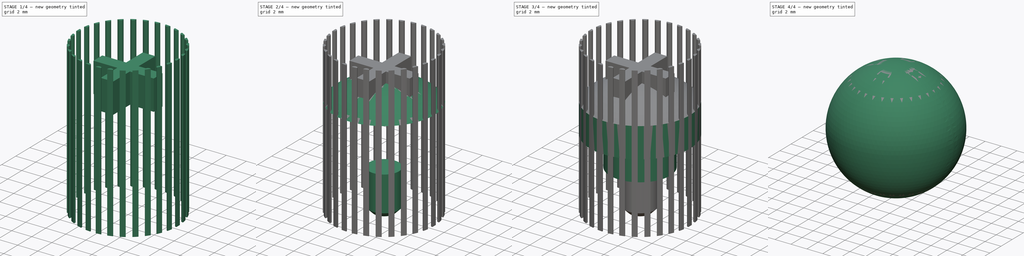
[diagram: build sequence overview — one tinted view per stage of 4, left to right]
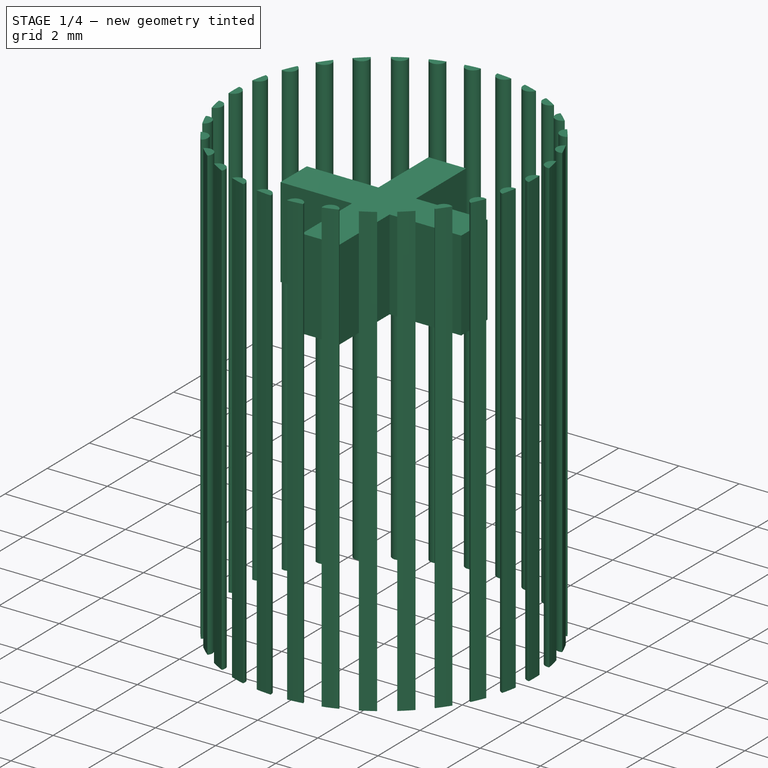
[diagram: stage 1 of 4 — iso view after this stage's code; geometry added in this stage tinted green]
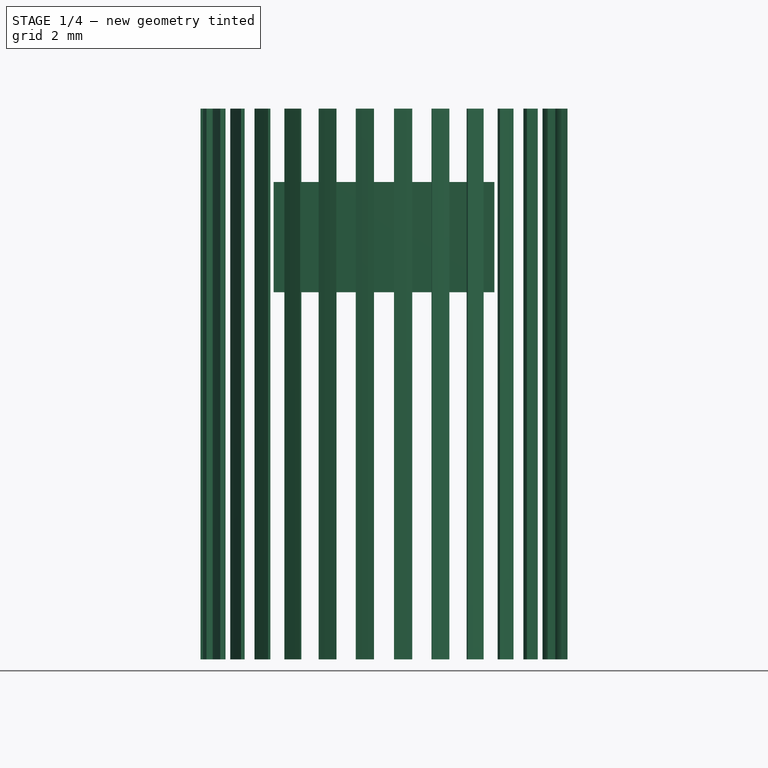
[diagram: stage 1 of 4 — front view after this stage's code; geometry added in this stage tinted green]
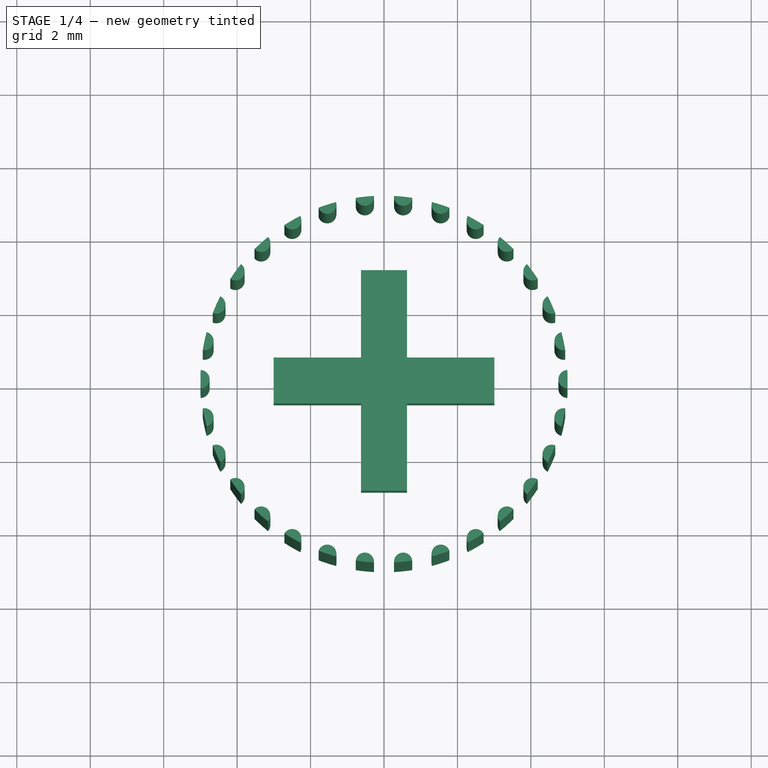
[diagram: stage 1 of 4 — top view after this stage's code; geometry added in this stage tinted green]
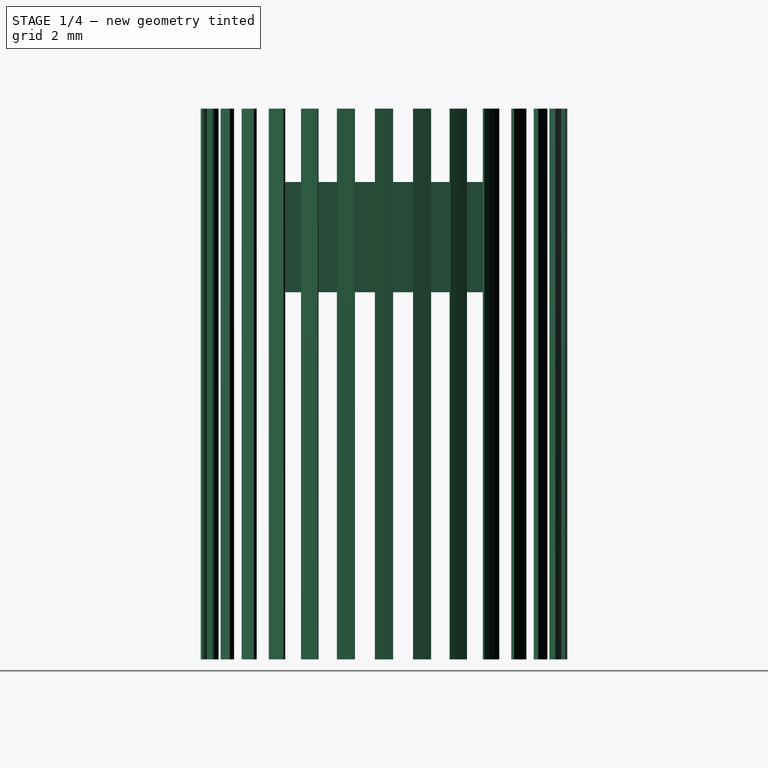
[diagram: stage 1 of 4 — right view after this stage's code; geometry added in this stage tinted green]
FCSTD DOCUMENT  (FreeCAD 0.14R3310 (Git))
Label: 51. TORNILLO M3 TAPA SUPERIOR
License: CC-BY 3.0
LicenseURL: http://creativecommons.org/licenses/by/3.0/
objects: Sketcher::SketchObject×6, PartDesign::Pad×5, Part::Cut×2, PartDesign::Chamfer×1, Part::Sphere×1, PartDesign::Revolution×1, Part::MultiFuse×1, Part::FeaturePython×1
note: 24 computed .brp shape members not serialized (recipe doc carries the construction recipe); baked Part::Feature solids carry a one-line shape summary decoded from their .brp

FEATURE [Sketcher::SketchObject] Sketch004
  Placement = pos=(0,0,10) rot=(0,0,1;0rad)
  sketch-geometry (12):
    g0: LineSegment StartX=-0.625 StartY=3.005 StartZ=0 EndX=0.625 EndY=3.005 EndZ=0
    g1: LineSegment StartX=0.625 StartY=3.005 StartZ=0 EndX=0.625 EndY=0.625 EndZ=0
    g2: LineSegment StartX=0.625 StartY=0.625 StartZ=0 EndX=3.005 EndY=0.625 EndZ=0
    g3: LineSegment StartX=3.005 StartY=0.625 StartZ=0 EndX=3.005 EndY=-0.625 EndZ=0
    g4: LineSegment StartX=3.005 StartY=-0.625 StartZ=0 EndX=0.625 EndY=-0.625 EndZ=0
    g5: LineSegment StartX=0.625 StartY=-0.625 StartZ=0 EndX=0.625 EndY=-3.005 EndZ=0
    g6: LineSegment StartX=0.625 StartY=-3.005 StartZ=0 EndX=-0.625 EndY=-3.005 EndZ=0
    g7: LineSegment StartX=-0.625 StartY=-3.005 StartZ=0 EndX=-0.625 EndY=-0.625 EndZ=0
    g8: LineSegment StartX=-0.625 StartY=-0.625 StartZ=0 EndX=-3.005 EndY=-0.625 EndZ=0
    g9: LineSegment StartX=-3.005 StartY=-0.625 StartZ=0 EndX=-3.005 EndY=0.625 EndZ=0
    g10: LineSegment StartX=-3.005 StartY=0.625 StartZ=0 EndX=-0.625 EndY=0.625 EndZ=0
    g11: LineSegment StartX=-0.625 StartY=0.625 StartZ=0 EndX=-0.625 EndY=3.005 EndZ=0
  constraints (38):
    c: Horizontal(g0)
    c: Coincident(g0,g1)
    c: Coincident(g1,g2)
    c: Horizontal(g2)
    c: Coincident(g2,g3)
    c: Vertical(g3)
    c: Coincident(g3,g4)
    c: Horizontal(g4)
    c: Coincident(g4,g5)
    c: Vertical(g5)
    c: Coincident(g5,g6)
    c: Horizontal(g6)
    c: Coincident(g6,g7)
    c: Vertical(g7)
    c: Coincident(g7,g8)
    c: Horizontal(g8)
    c: Coincident(g8,g9)
    c: Vertical(g9)
    c: Coincident(g9,g10)
    c: Horizontal(g10)
    c: Coincident(g10,g11)
    c: Coincident(g11,g0)
    c: Vertical(g11)
    c: Vertical(g1)
    c: Equal(g4,g2)
    c: Equal(g2,g1)
    c: Equal(g1,g11)
    c: Equal(g11,g10)
    c: Equal(g10,g8)
    c: Equal(g8,g7)
    c: Equal(g7,g5)
    c: Equal(g3,g0)
    c: Equal(g0,g9)
    c: Equal(g9,g6)
    c: Distance(g6) = 1.25
    c: Symmetric(g3,g8,g-2)
    c: Symmetric(g0,g5,g-1)
    c: Distance(g10) = 2.38
FEATURE [PartDesign::Pad] Pad003
  Length = 3
  Length2 = 100
  Placement = pos=(0,0,10) rot=(0,0,1;0rad)
  Sketch = -> Sketch004
  Type = 0
FEATURE [Sketcher::SketchObject] Sketch005
  sketch-geometry (3):
    g0: ArcOfCircle CenterX=5 CenterY=0 CenterZ=0 NormalX=0 NormalY=0 NormalZ=1 Radius=0.25 StartAngle=1.5958 EndAngle=4.68739
    g1: Circle [constr] CenterX=0 CenterY=0 CenterZ=0 NormalX=0 NormalY=0 NormalZ=1 Radius=5
    g2: ArcOfCircle CenterX=0 CenterY=0 CenterZ=0 NormalX=0 NormalY=0 NormalZ=1 Radius=5 StartAngle=6.23318 EndAngle=6.33319
  constraints (10):
    c: PointOnObject(g0,g-1)
    c: Coincident(g1,g-1)
    c: Radius(g1) = 5
    c: PointOnObject(g0,g1)
    c: PointOnObject(g0,g1)
    c: Radius(g0) = 0.25
    c: PointOnObject(g0,g1)
    c: Coincident(g2,g-1)
    c: Coincident(g2,g0)
    c: Coincident(g2,g0)
FEATURE [PartDesign::Pad] Pad004
  Length = 15
  Length2 = 100
  Sketch = -> Sketch005
  Type = 0
FEATURE [Part::FeaturePython] Array  # Draft array (typed FeaturePython)
  Angle = 360
  ArrayType = 1
  Axis = (0,0,1)
  Base = -> Pad004
  Center = (0,0,0)
  IntervalX = (1,0,0)
  IntervalY = (0,1,0)
  IntervalZ = (0,0,1)
  NumberPolar = 30
  NumberX = 2
  NumberY = 2
  NumberZ = 1
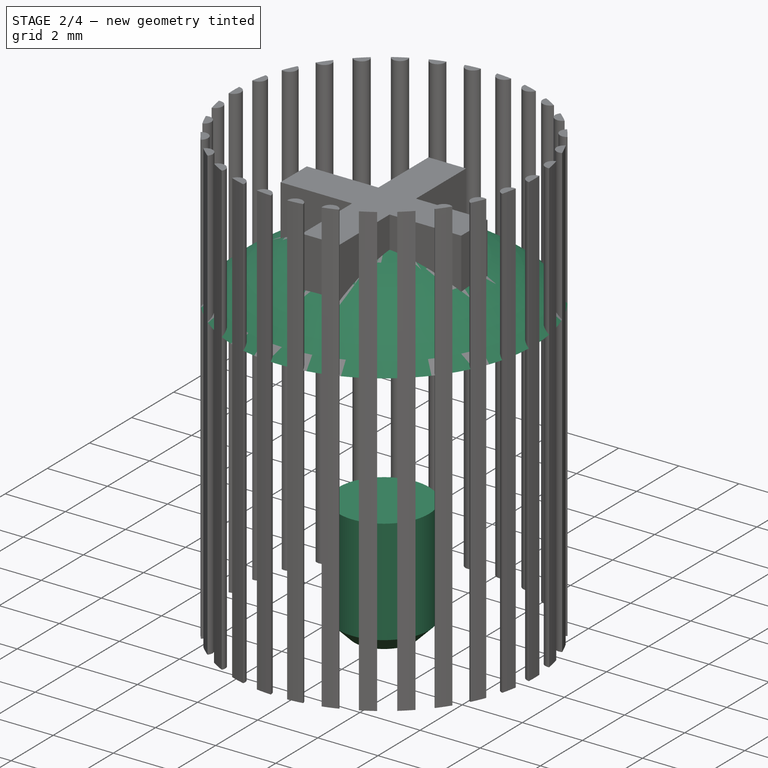
[diagram: stage 2 of 4 — iso view after this stage's code; geometry added in this stage tinted green]
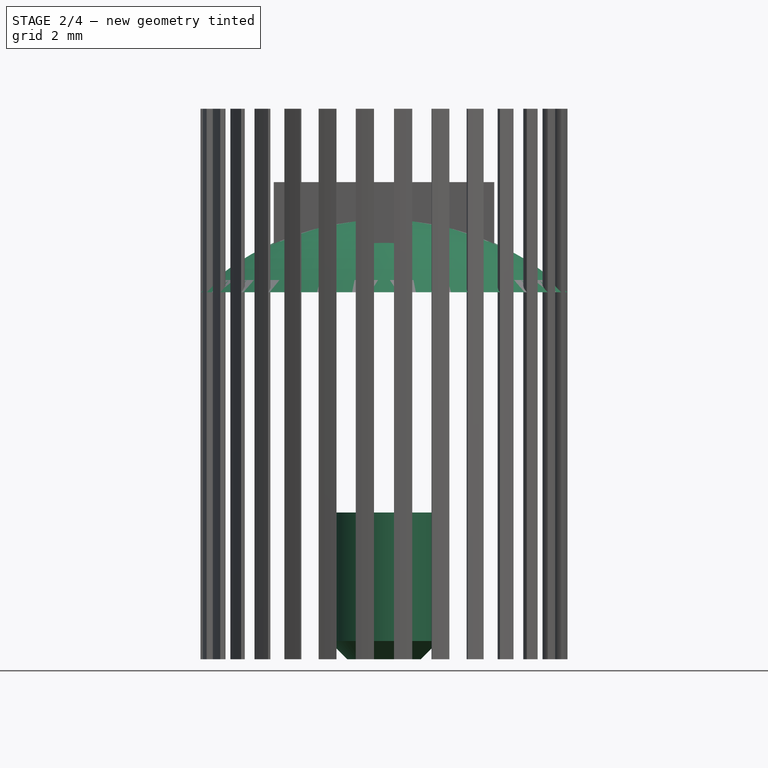
[diagram: stage 2 of 4 — front view after this stage's code; geometry added in this stage tinted green]
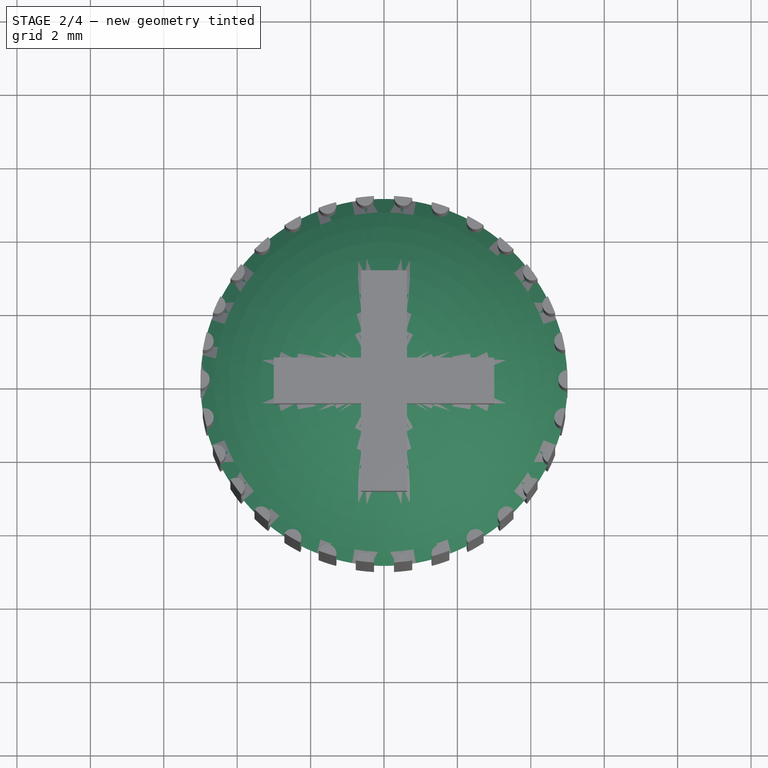
[diagram: stage 2 of 4 — top view after this stage's code; geometry added in this stage tinted green]
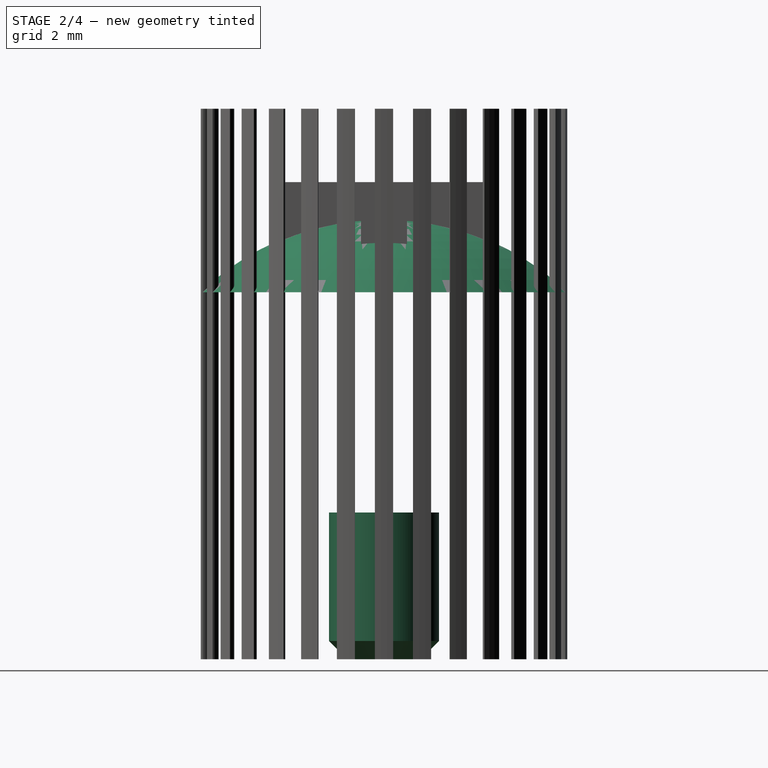
[diagram: stage 2 of 4 — right view after this stage's code; geometry added in this stage tinted green]
FEATURE [Sketcher::SketchObject] Sketch
  sketch-geometry (1):
    g0: Circle CenterX=0 CenterY=0 CenterZ=0 NormalX=0 NormalY=0 NormalZ=1 Radius=1.5
  constraints (2):
    c: Coincident(g0,g-1)
    c: Radius(g0) = 1.5
FEATURE [PartDesign::Pad] Pad
  Length = 4
  Length2 = 100
  Sketch = -> Sketch
  Type = 0
FEATURE [PartDesign::Chamfer] Chamfer
  Base = -> Pad [Edge2]
  Size = 0.5
FEATURE [Sketcher::SketchObject] Sketch003
  Placement = pos=(0,0,0) rot=(-1,0,0;4.71239rad)
  sketch-geometry (4):
    g0: LineSegment StartX=0 StartY=12 StartZ=0 EndX=0 EndY=10 EndZ=0
    g1: ArcOfCircle [constr] CenterX=0 CenterY=4.75 CenterZ=0 NormalX=0 NormalY=0 NormalZ=1 Radius=7.25 StartAngle=0.809784 EndAngle=2.33181
    g2: LineSegment StartX=-5 StartY=10 StartZ=0 EndX=0 EndY=10 EndZ=0
    g3: ArcOfCircle CenterX=0 CenterY=4.75 CenterZ=0 NormalX=0 NormalY=0 NormalZ=1 Radius=7.25 StartAngle=1.5708 EndAngle=2.33181
  constraints (14):
    c: PointOnObject(g0,g-2)
    c: Vertical(g0)
    c: PointOnObject(g1,g-2)
    c: Symmetric(g1,g1,g-2)
    c: DistanceY(g-1,g1) = 10
    c: Distance(g1,g1) = 10
    c: Radius(g1) = 7.25
    c: PointOnObject(g0,g1)
    c: Distance(g-1,g0) = 10
    c: Coincident(g2,g1)
    c: Coincident(g2,g0)
    c: Coincident(g3,g1)
    c: Coincident(g3,g1)
    c: Coincident(g3,g0)
FEATURE [PartDesign::Revolution] Revolution
  Angle = 360
  Axis = (0,0,1)
  Base = (0,0,0)
  Placement = pos=(0,0,0) rot=(-1,0,0;4.71239rad)
  ReferenceAxis = -> Sketch003 [V_Axis]
  Sketch = -> Sketch003
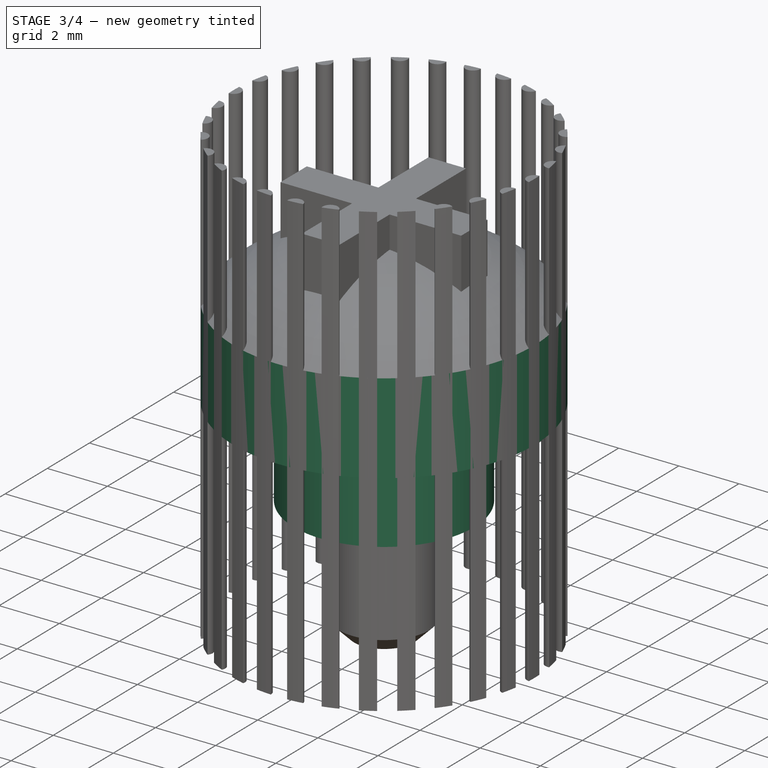
[diagram: stage 3 of 4 — iso view after this stage's code; geometry added in this stage tinted green]
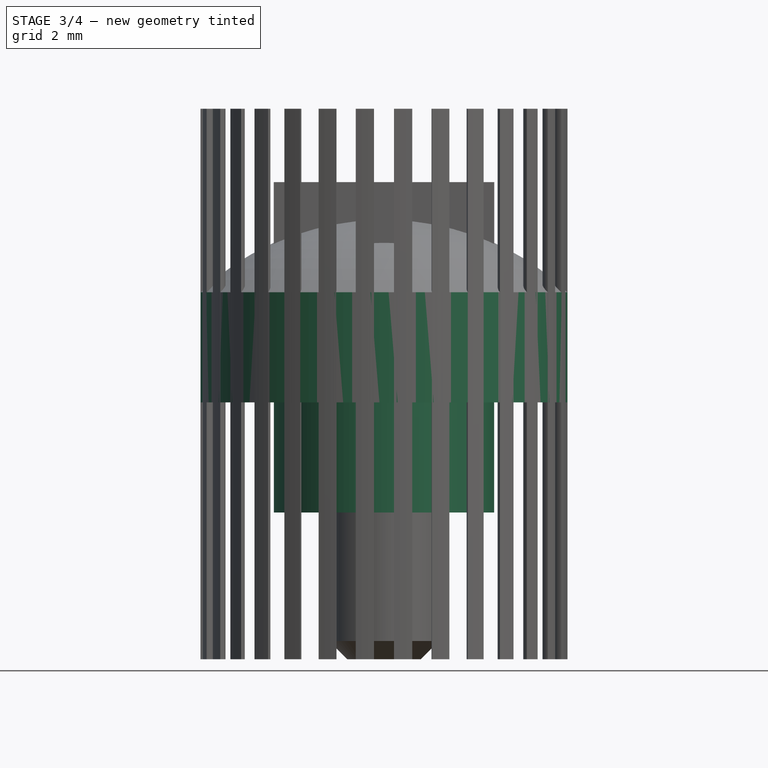
[diagram: stage 3 of 4 — front view after this stage's code; geometry added in this stage tinted green]
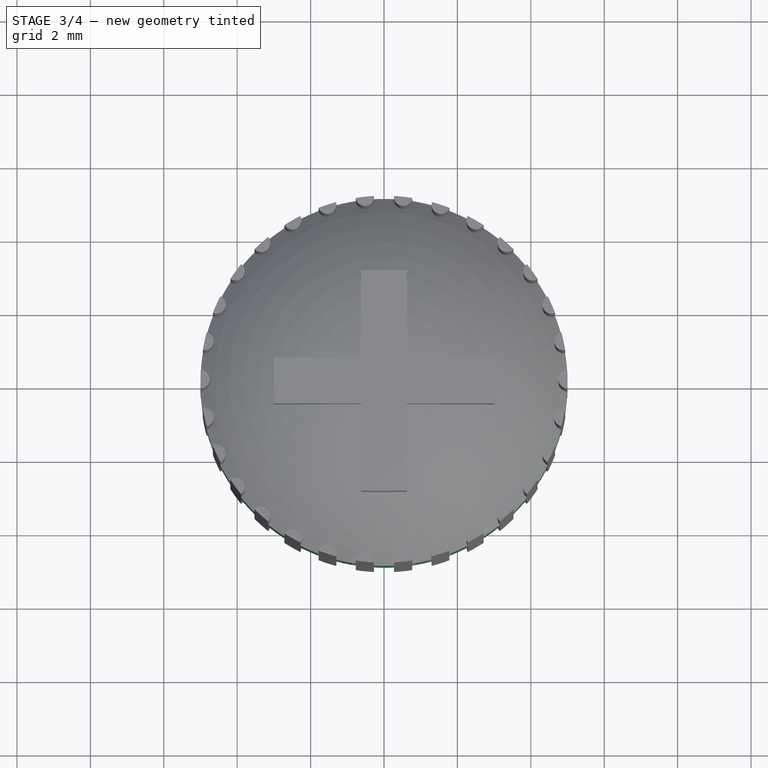
[diagram: stage 3 of 4 — top view after this stage's code; geometry added in this stage tinted green]
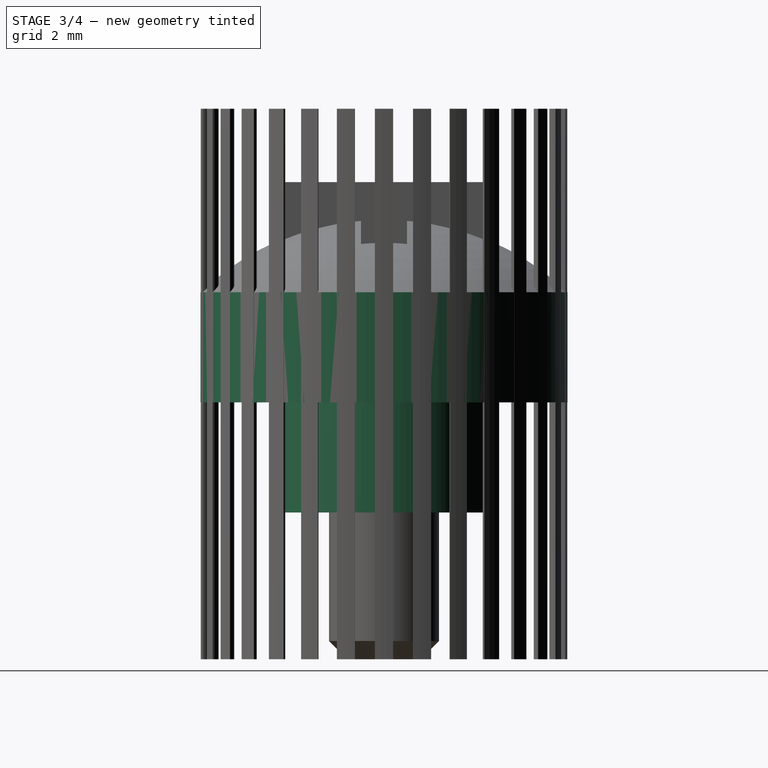
[diagram: stage 3 of 4 — right view after this stage's code; geometry added in this stage tinted green]
FEATURE [Sketcher::SketchObject] Sketch001
  Placement = pos=(0,0,4) rot=(0,0,1;0rad)
  Support = -> Chamfer [Face3]
  sketch-geometry (1):
    g0: Circle CenterX=0 CenterY=0 CenterZ=0 NormalX=0 NormalY=0 NormalZ=1 Radius=3
  constraints (2):
    c: Coincident(g0,g-1)
    c: Radius(g0) = 3
FEATURE [PartDesign::Pad] Pad001
  Length = 3
  Length2 = 100
  Sketch = -> Sketch001
  Type = 0
FEATURE [Sketcher::SketchObject] Sketch002
  Placement = pos=(0,0,7) rot=(0,0,1;0rad)
  Support = -> Pad001 [Face3]
  sketch-geometry (1):
    g0: Circle CenterX=0 CenterY=0 CenterZ=0 NormalX=0 NormalY=0 NormalZ=1 Radius=5
  constraints (2):
    c: Coincident(g0,g-1)
    c: Radius(g0) = 5
FEATURE [PartDesign::Pad] Pad002
  Length = 3
  Length2 = 100
  Sketch = -> Sketch002
  Type = 0
FEATURE [Part::MultiFuse] Fusion
  Shapes = -> [Pad002,Revolution]
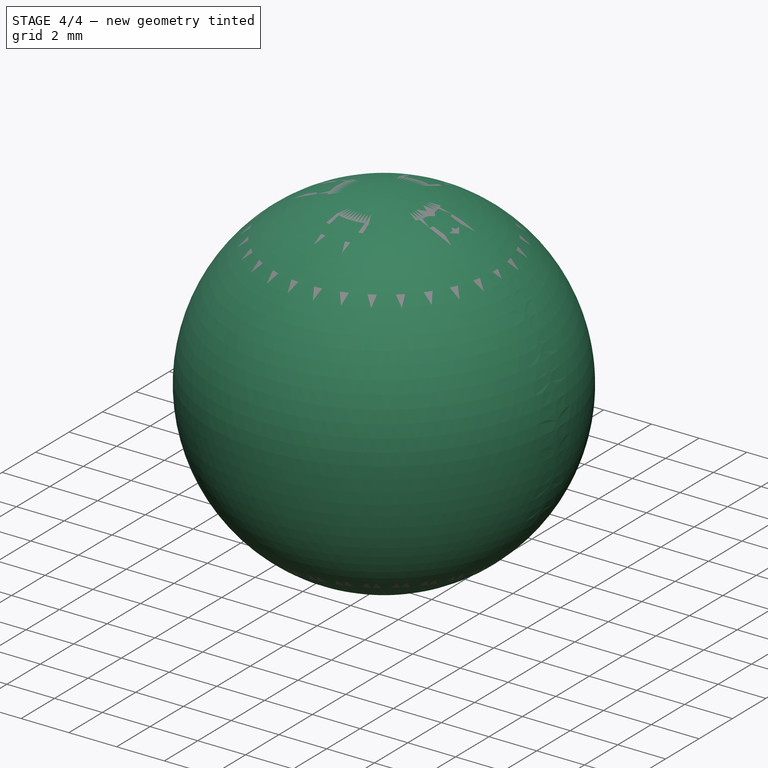
[diagram: stage 4 of 4 — iso view after this stage's code; geometry added in this stage tinted green]
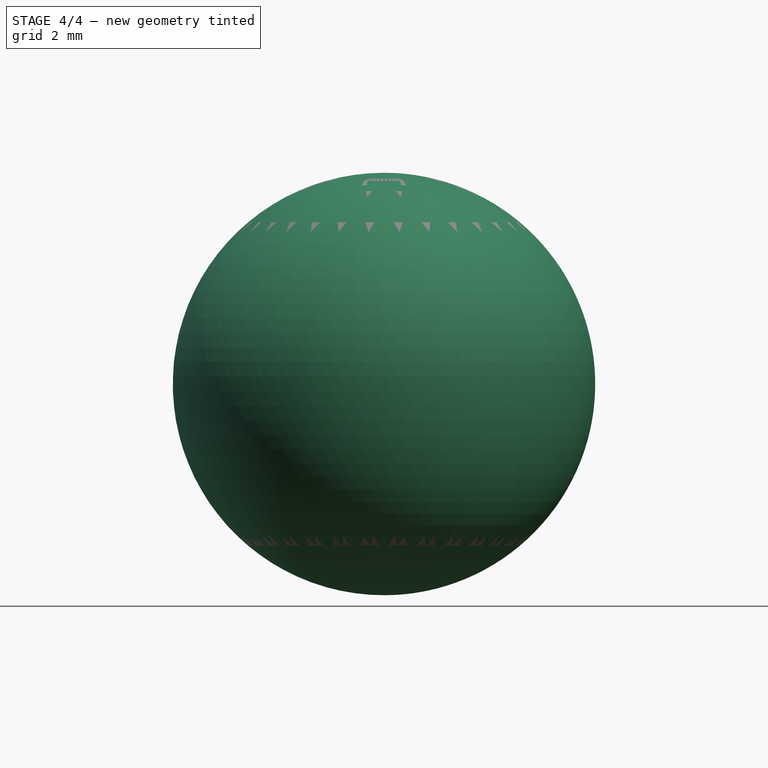
[diagram: stage 4 of 4 — front view after this stage's code; geometry added in this stage tinted green]
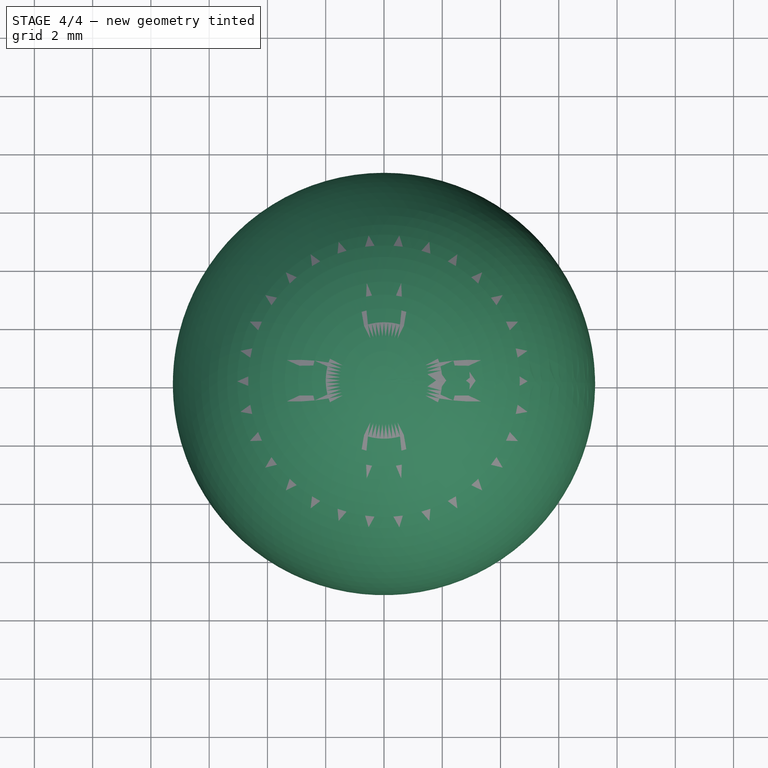
[diagram: stage 4 of 4 — top view after this stage's code; geometry added in this stage tinted green]
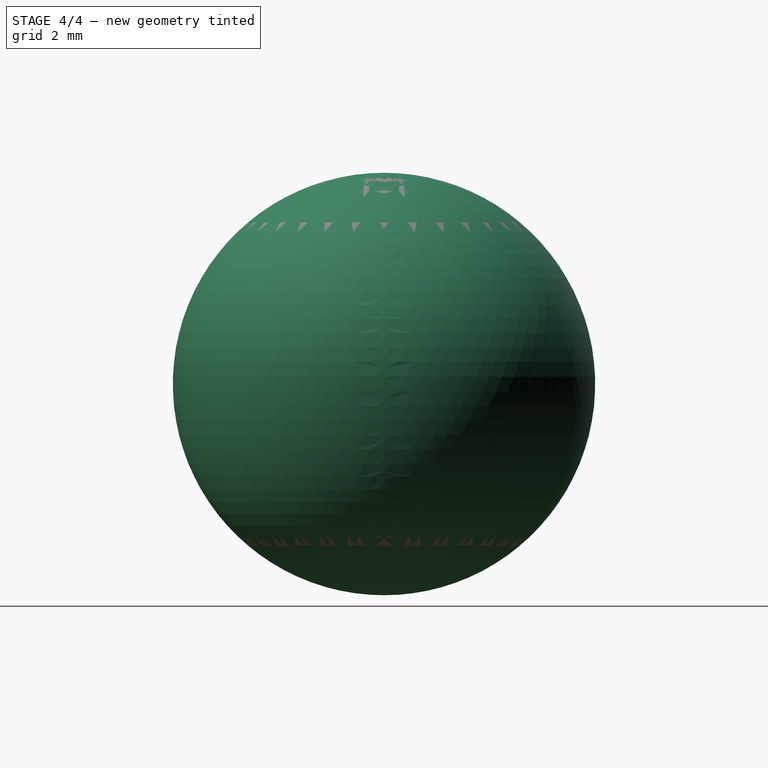
[diagram: stage 4 of 4 — right view after this stage's code; geometry added in this stage tinted green]
FEATURE [Part::Sphere] Sphere  label="Esféra"
  Angle1 = -90
  Angle2 = 90
  Angle3 = 360
  Placement = pos=(0,0,6) rot=(0,0,1;0rad)
  Radius = 7.25
FEATURE [Part::Cut] Cut
  Base = -> Fusion
  Tool = -> Pad003
FEATURE [Part::Cut] Cut001
  Base = -> Cut
  Tool = -> Array
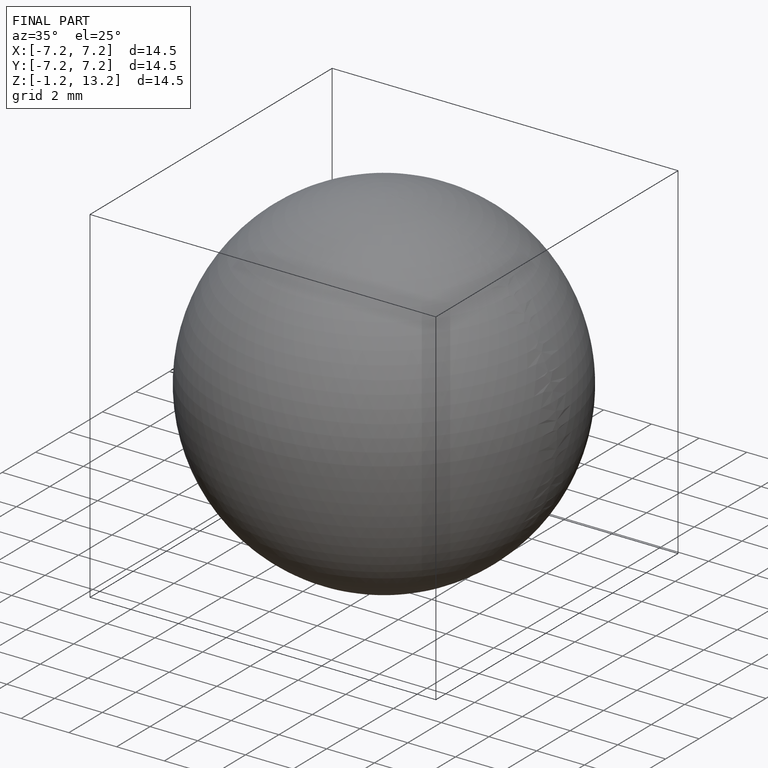
[diagram: finished part — iso view with bounding-box wireframe]
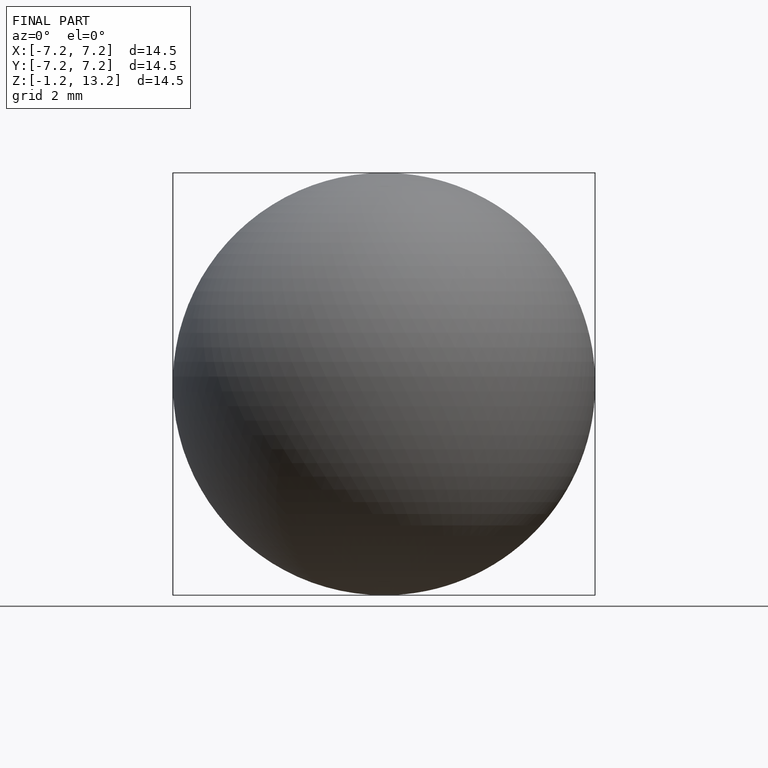
[diagram: finished part — front view with bounding-box wireframe]
